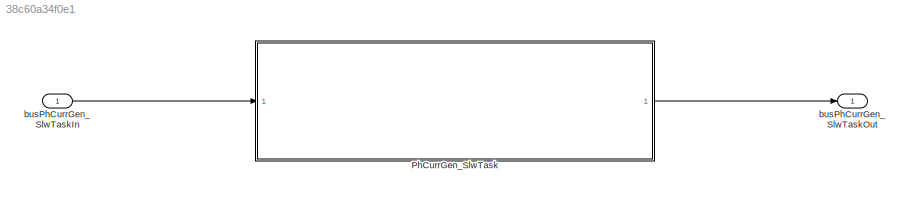
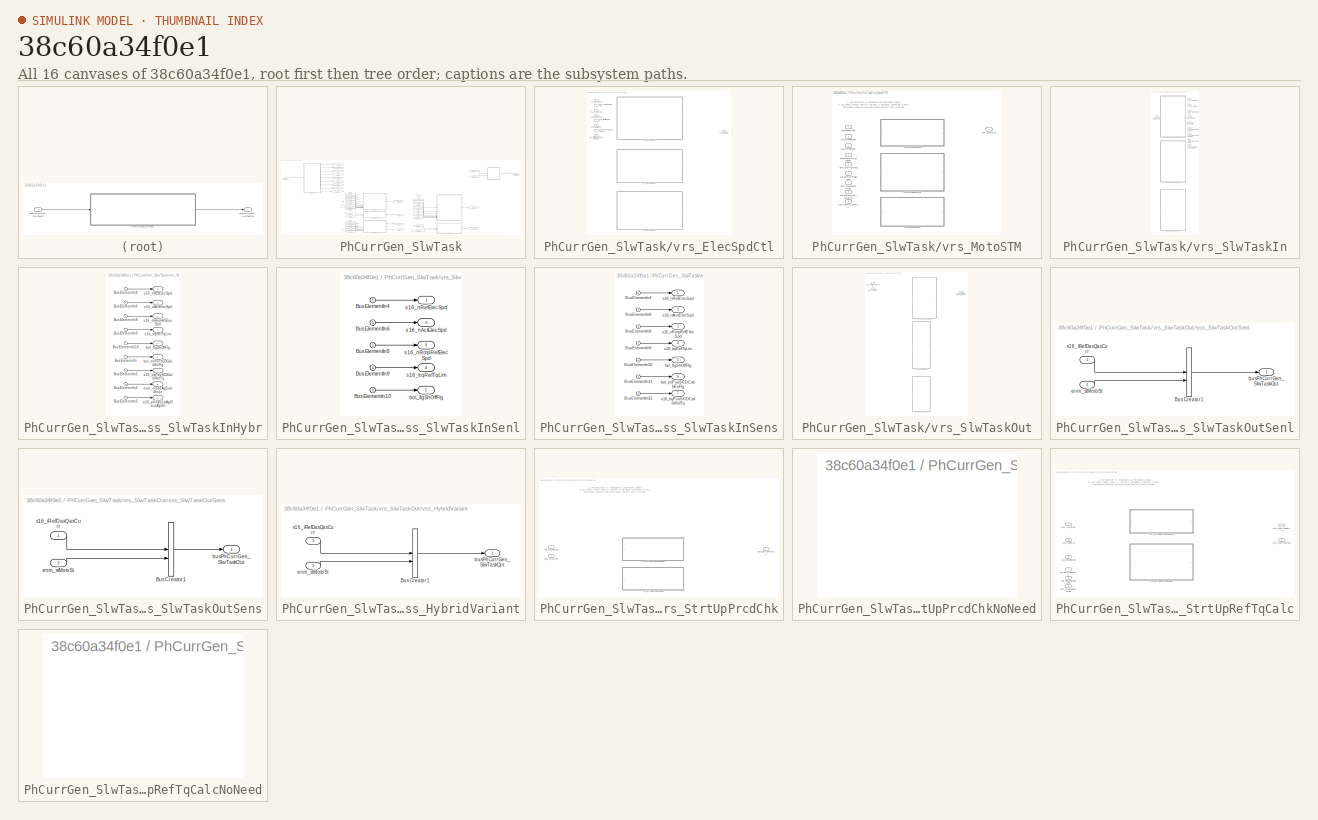
[diagram: thumbnail index - all 16 canvases of the model, root first then tree order]
MODEL slx_38c60a34f0e1
KIND model
CONFIG AbsTol = auto
CONFIG EnableMultiTasking = on
CONFIG FixedStep = 0.0005
CONFIG MaxStep = auto
CONFIG MinStep = auto
CONFIG RelTol = 1e-3
CONFIG SampleTimeConstraint = Unconstrained
CONFIG SolverName = FixedStepAuto
CONFIG StartTime = 0.0
CONFIG StopTime = 5
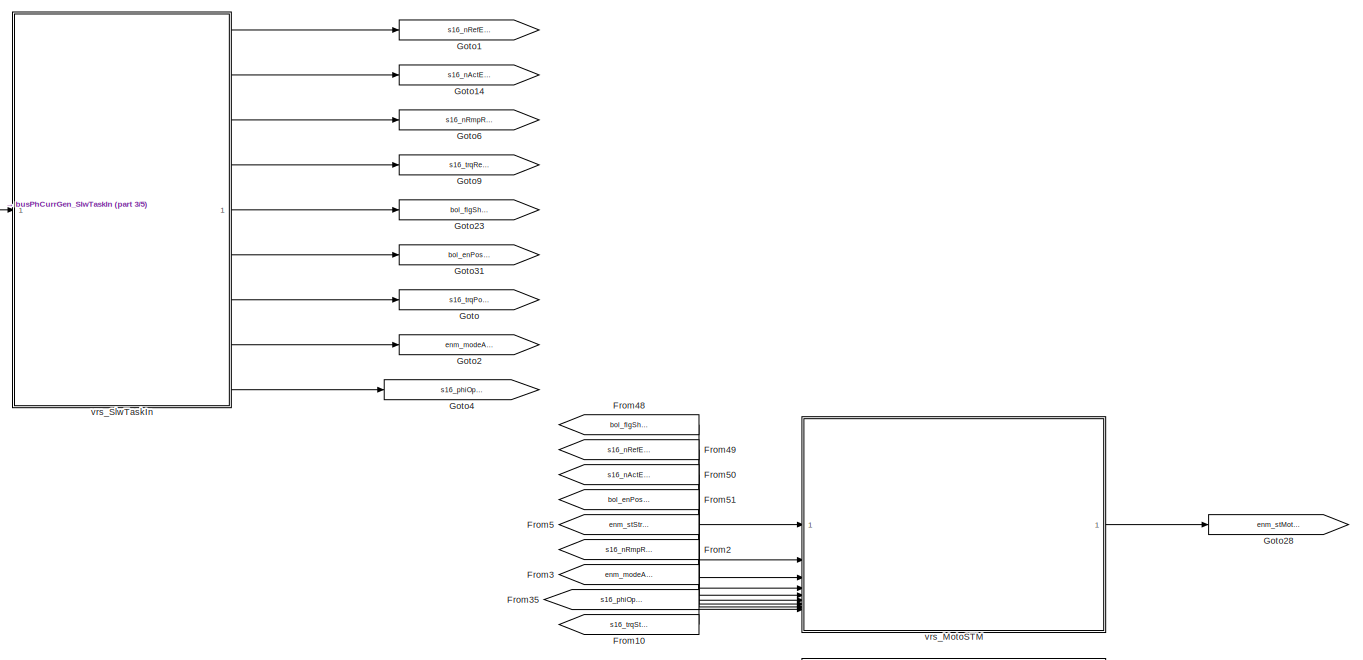
[diagram: PhCurrGen_SlwTask - part 1/5, middle left region]
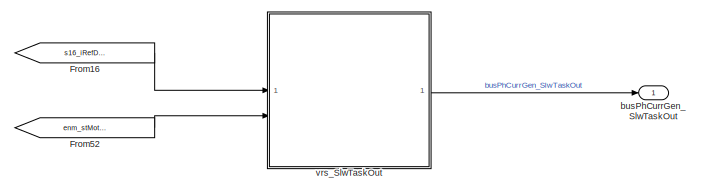
[diagram: PhCurrGen_SlwTask - part 2/5, top right region]
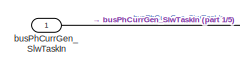
[diagram: PhCurrGen_SlwTask - part 3/5, top left region]
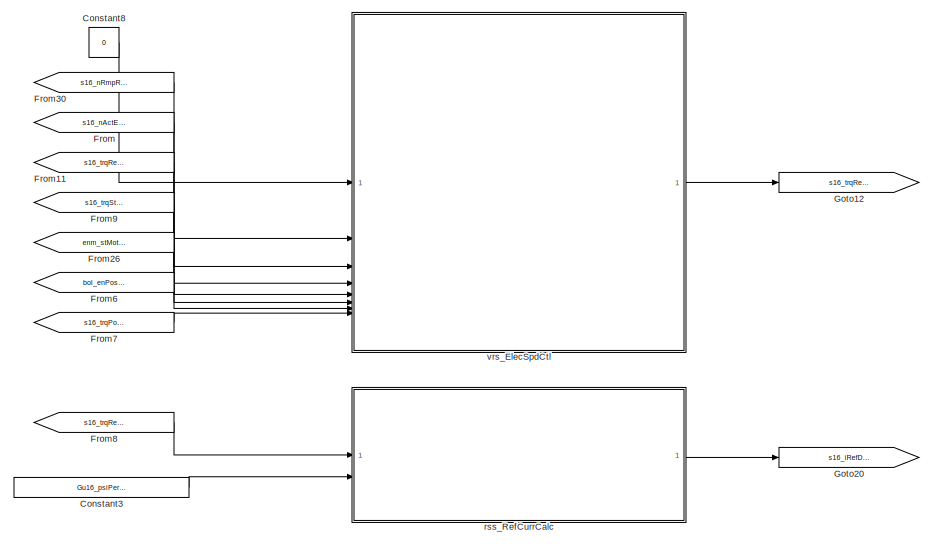
[diagram: PhCurrGen_SlwTask - part 4/5, bottom right region]
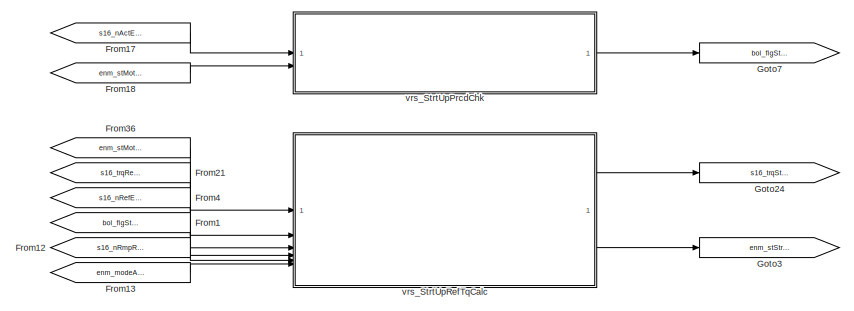
[diagram: PhCurrGen_SlwTask - part 5/5, bottom center region]
BLOCK [SubSystem] PhCurrGen_SlwTask
  RTWFcnName = PhCurrGen_SlwTask
  RTWFcnNameOpts = User specified
  RTWSystemCode = Nonreusable function
  TreatAsAtomicUnit = on
BLOCK [Constant] PhCurrGen_SlwTask/Constant3
  Value = Gu16_psiPermMagFlx_C
BLOCK [Constant] PhCurrGen_SlwTask/Constant8
  OutDataTypeStr = dt_Standardize_s16p15b0
  Value = 0
BLOCK [From] PhCurrGen_SlwTask/From
  GotoTag = s16_nActElecSpd
BLOCK [From] PhCurrGen_SlwTask/From1
  GotoTag = bol_flgStrtUpProcOk
BLOCK [From] PhCurrGen_SlwTask/From10
  GotoTag = s16_trqStrtUpRefTq
BLOCK [From] PhCurrGen_SlwTask/From11
  GotoTag = s16_trqRefTqLim
BLOCK [From] PhCurrGen_SlwTask/From12
  GotoTag = s16_nRmpRefElecSpd
BLOCK [From] PhCurrGen_SlwTask/From13
  GotoTag = enm_modeAgEvalMode
BLOCK [From] PhCurrGen_SlwTask/From16
  GotoTag = s16_iRefDaxQaxCurr
BLOCK [From] PhCurrGen_SlwTask/From17
  GotoTag = s16_nActElecSpd
BLOCK [From] PhCurrGen_SlwTask/From18
  GotoTag = enm_stMotoSt
BLOCK [From] PhCurrGen_SlwTask/From2
  GotoTag = s16_nRmpRefElecSpd
BLOCK [From] PhCurrGen_SlwTask/From21
  GotoTag = s16_trqRefTq
BLOCK [From] PhCurrGen_SlwTask/From26
  GotoTag = enm_stMotoSt
BLOCK [From] PhCurrGen_SlwTask/From3
  GotoTag = enm_modeAgEvalMode
BLOCK [From] PhCurrGen_SlwTask/From30
  GotoTag = s16_nRmpRefElecSpd
BLOCK [From] PhCurrGen_SlwTask/From35
  GotoTag = s16_phiOpnLpAgClsLpAgDvt
BLOCK [From] PhCurrGen_SlwTask/From36
  GotoTag = enm_stMotoSt
BLOCK [From] PhCurrGen_SlwTask/From4
  GotoTag = s16_nRefElecSpd
BLOCK [From] PhCurrGen_SlwTask/From48
  GotoTag = bol_flgShOffFlg
BLOCK [From] PhCurrGen_SlwTask/From49
  GotoTag = s16_nRefElecSpd
BLOCK [From] PhCurrGen_SlwTask/From5
  GotoTag = enm_stStrtupTrqSt
BLOCK [From] PhCurrGen_SlwTask/From50
  GotoTag = s16_nActElecSpd
BLOCK [From] PhCurrGen_SlwTask/From51
  GotoTag = bol_enPosSCDCalibEnFlg
BLOCK [From] PhCurrGen_SlwTask/From52
  GotoTag = enm_stMotoSt
BLOCK [From] PhCurrGen_SlwTask/From6
  GotoTag = bol_enPosSCDCalibEnFlg
BLOCK [From] PhCurrGen_SlwTask/From7
  GotoTag = s16_trqPosSCDCalibRefTq
BLOCK [From] PhCurrGen_SlwTask/From8
  GotoTag = s16_trqRefTq
BLOCK [From] PhCurrGen_SlwTask/From9
  GotoTag = s16_trqStrtUpRefTq
BLOCK [Goto] PhCurrGen_SlwTask/Goto
  GotoTag = s16_trqPosSCDCalibRefTq
BLOCK [Goto] PhCurrGen_SlwTask/Goto1
  GotoTag = s16_nRefElecSpd
BLOCK [Goto] PhCurrGen_SlwTask/Goto12
  GotoTag = s16_trqRefTq
BLOCK [Goto] PhCurrGen_SlwTask/Goto14
  GotoTag = s16_nActElecSpd
BLOCK [Goto] PhCurrGen_SlwTask/Goto2
  GotoTag = enm_modeAgEvalMode
BLOCK [Goto] PhCurrGen_SlwTask/Goto20
  GotoTag = s16_iRefDaxQaxCurr
BLOCK [Goto] PhCurrGen_SlwTask/Goto23
  GotoTag = bol_flgShOffFlg
BLOCK [Goto] PhCurrGen_SlwTask/Goto24
  GotoTag = s16_trqStrtUpRefTq
BLOCK [Goto] PhCurrGen_SlwTask/Goto28
  GotoTag = enm_stMotoSt
BLOCK [Goto] PhCurrGen_SlwTask/Goto3
  GotoTag = enm_stStrtupTrqSt
BLOCK [Goto] PhCurrGen_SlwTask/Goto31
  GotoTag = bol_enPosSCDCalibEnFlg
BLOCK [Goto] PhCurrGen_SlwTask/Goto4
  GotoTag = s16_phiOpnLpAgClsLpAgDvt
BLOCK [Goto] PhCurrGen_SlwTask/Goto6
  GotoTag = s16_nRmpRefElecSpd
BLOCK [Goto] PhCurrGen_SlwTask/Goto7
  GotoTag = bol_flgStrtUpProcOk
BLOCK [Goto] PhCurrGen_SlwTask/Goto9
  GotoTag = s16_trqRefTqLim
BLOCK [Inport] PhCurrGen_SlwTask/busPhCurrGen_SlwTaskIn
  SamplingMode = Sample based
  SignalType = real
BLOCK [Outport] PhCurrGen_SlwTask/busPhCurrGen_SlwTaskOut
  SamplingMode = Sample based
  SignalType = real
BLOCK [SubSystem] PhCurrGen_SlwTask/rss_RefCurrCalc
  ReferencedSubsystem = rss_RefCurrCalc
BLOCK [SubSystem] PhCurrGen_SlwTask/vrs_ElecSpdCtl
  LabelModeActiveChoice = cstHybrCtrlLbl
  Variant = on
  VariantControl = Choice
  VariantControlMode = label
BLOCK [Inport] PhCurrGen_SlwTask/vrs_ElecSpdCtl/bol_enPosSCDCalibEnFlg
  Port = 7
BLOCK [Inport] PhCurrGen_SlwTask/vrs_ElecSpdCtl/enm_stMotoSt
  Port = 6
BLOCK [SubSystem] PhCurrGen_SlwTask/vrs_ElecSpdCtl/rss_ElecSpdCtlHybr
  ReferencedSubsystem = rss_ElecSpdCtlHybr
  VariantControl = cstHybrCtrlLbl
BLOCK [SubSystem] PhCurrGen_SlwTask/vrs_ElecSpdCtl/rss_ElecSpdCtlSenl
  ReferencedSubsystem = rss_ElecSpdCtlSenl
  VariantControl = cstSenlCtrlLbl
BLOCK [SubSystem] PhCurrGen_SlwTask/vrs_ElecSpdCtl/rss_ElecSpdCtlSens
  ReferencedSubsystem = rss_ElecSpdCtlSens
  VariantControl = cstSensCtrlLbl
BLOCK [Inport] PhCurrGen_SlwTask/vrs_ElecSpdCtl/s16_nActElecSpd
  Port = 3
BLOCK [Inport] PhCurrGen_SlwTask/vrs_ElecSpdCtl/s16_nRmpRefElecSpd
  Port = 2
BLOCK [Inport] PhCurrGen_SlwTask/vrs_ElecSpdCtl/s16_trqFdwdTq
BLOCK [Inport] PhCurrGen_SlwTask/vrs_ElecSpdCtl/s16_trqPosSCDCalibRefTq
  Port = 8
BLOCK [Outport] PhCurrGen_SlwTask/vrs_ElecSpdCtl/s16_trqRefTq
BLOCK [Inport] PhCurrGen_SlwTask/vrs_ElecSpdCtl/s16_trqRefTqLim
  Port = 4
BLOCK [Inport] PhCurrGen_SlwTask/vrs_ElecSpdCtl/s16_trqStrtUpRefTq
  Port = 5
BLOCK [SubSystem] PhCurrGen_SlwTask/vrs_MotoSTM
  LabelModeActiveChoice = cstHybrCtrlLbl
  Variant = on
  VariantControlMode = label
BLOCK [Inport] PhCurrGen_SlwTask/vrs_MotoSTM/bol_enPosSCDCalibEnFlg
  Port = 4
BLOCK [Inport] PhCurrGen_SlwTask/vrs_MotoSTM/bol_flgShOffFlg
BLOCK [Inport] PhCurrGen_SlwTask/vrs_MotoSTM/enm_modeAgEvalMode
  Port = 7
BLOCK [Outport] PhCurrGen_SlwTask/vrs_MotoSTM/enm_stMotoSt
BLOCK [Inport] PhCurrGen_SlwTask/vrs_MotoSTM/enm_stStrtupTrqSt
  Port = 5
BLOCK [SubSystem] PhCurrGen_SlwTask/vrs_MotoSTM/rss_MotoSTMHybr
  ReferencedSubsystem = rss_MotoSTMHybr
  VariantControl = cstHybrCtrlLbl
BLOCK [SubSystem] PhCurrGen_SlwTask/vrs_MotoSTM/rss_MotoSTMSenl
  ReferencedSubsystem = rss_MotoSTMSenl
  VariantControl = cstSenlCtrlLbl
BLOCK [SubSystem] PhCurrGen_SlwTask/vrs_MotoSTM/rss_MotoSTMSens
  ReferencedSubsystem = rss_MotoSTMSens
  VariantControl = cstSensCtrlLbl
BLOCK [Inport] PhCurrGen_SlwTask/vrs_MotoSTM/s16_nActElecSpd
  Port = 3
BLOCK [Inport] PhCurrGen_SlwTask/vrs_MotoSTM/s16_nRefElecSpd
  Port = 2
BLOCK [Inport] PhCurrGen_SlwTask/vrs_MotoSTM/s16_nRmpRefElecSpd
  Port = 6
BLOCK [Inport] PhCurrGen_SlwTask/vrs_MotoSTM/s16_phiOpnLpAgClsLpAgDvt
  Port = 8
BLOCK [Inport] PhCurrGen_SlwTask/vrs_MotoSTM/s16_trqStrtUpRefTq
  Port = 9
BLOCK [SubSystem] PhCurrGen_SlwTask/vrs_SlwTaskIn
  LabelModeActiveChoice = cstHybrCtrlLbl
  Variant = on
  VariantControl = cstSenlCtrlLbl
  VariantControlMode = label
BLOCK [Outport] PhCurrGen_SlwTask/vrs_SlwTaskIn/bol_enPosSCDCalibEnFlg
  Port = 6
BLOCK [Outport] PhCurrGen_SlwTask/vrs_SlwTaskIn/bol_flgShOffFlg
  Port = 5
BLOCK [Inport] PhCurrGen_SlwTask/vrs_SlwTaskIn/busMotoCtl_SlwTaskIn
BLOCK [Outport] PhCurrGen_SlwTask/vrs_SlwTaskIn/enm_modeAgEvalMode
  Port = 8
BLOCK [Outport] PhCurrGen_SlwTask/vrs_SlwTaskIn/s16_nActElecSpd
  Port = 2
BLOCK [Outport] PhCurrGen_SlwTask/vrs_SlwTaskIn/s16_nRefElecSpd
BLOCK [Outport] PhCurrGen_SlwTask/vrs_SlwTaskIn/s16_nRmpRefElecSpd
  Port = 3
BLOCK [Outport] PhCurrGen_SlwTask/vrs_SlwTaskIn/s16_phiOpnLpAgClsLpAgDvt
  Port = 9
BLOCK [Outport] PhCurrGen_SlwTask/vrs_SlwTaskIn/s16_trqPosSCDCalibRefTq
  Port = 7
BLOCK [Outport] PhCurrGen_SlwTask/vrs_SlwTaskIn/s16_trqRefTqLim
  Port = 4
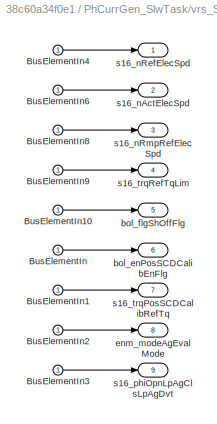
BLOCK [SubSystem] PhCurrGen_SlwTask/vrs_SlwTaskIn/sss_SlwTaskInHybr
  VariantControl = cstHybrCtrlLbl
BLOCK [Inport] PhCurrGen_SlwTask/vrs_SlwTaskIn/sss_SlwTaskInHybr/BusElementIn
BLOCK [Inport] PhCurrGen_SlwTask/vrs_SlwTaskIn/sss_SlwTaskInHybr/BusElementIn1
BLOCK [Inport] PhCurrGen_SlwTask/vrs_SlwTaskIn/sss_SlwTaskInHybr/BusElementIn10
BLOCK [Inport] PhCurrGen_SlwTask/vrs_SlwTaskIn/sss_SlwTaskInHybr/BusElementIn2
BLOCK [Inport] PhCurrGen_SlwTask/vrs_SlwTaskIn/sss_SlwTaskInHybr/BusElementIn3
BLOCK [Inport] PhCurrGen_SlwTask/vrs_SlwTaskIn/sss_SlwTaskInHybr/BusElementIn4
BLOCK [Inport] PhCurrGen_SlwTask/vrs_SlwTaskIn/sss_SlwTaskInHybr/BusElementIn6
BLOCK [Inport] PhCurrGen_SlwTask/vrs_SlwTaskIn/sss_SlwTaskInHybr/BusElementIn8
BLOCK [Inport] PhCurrGen_SlwTask/vrs_SlwTaskIn/sss_SlwTaskInHybr/BusElementIn9
BLOCK [Outport] PhCurrGen_SlwTask/vrs_SlwTaskIn/sss_SlwTaskInHybr/bol_enPosSCDCalibEnFlg
  Port = 6
BLOCK [Outport] PhCurrGen_SlwTask/vrs_SlwTaskIn/sss_SlwTaskInHybr/bol_flgShOffFlg
  Port = 5
BLOCK [Outport] PhCurrGen_SlwTask/vrs_SlwTaskIn/sss_SlwTaskInHybr/enm_modeAgEvalMode
  Port = 8
BLOCK [Outport] PhCurrGen_SlwTask/vrs_SlwTaskIn/sss_SlwTaskInHybr/s16_nActElecSpd
  Port = 2
BLOCK [Outport] PhCurrGen_SlwTask/vrs_SlwTaskIn/sss_SlwTaskInHybr/s16_nRefElecSpd
BLOCK [Outport] PhCurrGen_SlwTask/vrs_SlwTaskIn/sss_SlwTaskInHybr/s16_nRmpRefElecSpd
  Port = 3
BLOCK [Outport] PhCurrGen_SlwTask/vrs_SlwTaskIn/sss_SlwTaskInHybr/s16_phiOpnLpAgClsLpAgDvt
  Port = 9
BLOCK [Outport] PhCurrGen_SlwTask/vrs_SlwTaskIn/sss_SlwTaskInHybr/s16_trqPosSCDCalibRefTq
  Port = 7
BLOCK [Outport] PhCurrGen_SlwTask/vrs_SlwTaskIn/sss_SlwTaskInHybr/s16_trqRefTqLim
  Port = 4
BLOCK [SubSystem] PhCurrGen_SlwTask/vrs_SlwTaskIn/sss_SlwTaskInSenl
  VariantControl = cstSenlCtrlLbl
BLOCK [Inport] PhCurrGen_SlwTask/vrs_SlwTaskIn/sss_SlwTaskInSenl/BusElementIn10
BLOCK [Inport] PhCurrGen_SlwTask/vrs_SlwTaskIn/sss_SlwTaskInSenl/BusElementIn4
BLOCK [Inport] PhCurrGen_SlwTask/vrs_SlwTaskIn/sss_SlwTaskInSenl/BusElementIn6
BLOCK [Inport] PhCurrGen_SlwTask/vrs_SlwTaskIn/sss_SlwTaskInSenl/BusElementIn8
BLOCK [Inport] PhCurrGen_SlwTask/vrs_SlwTaskIn/sss_SlwTaskInSenl/BusElementIn9
BLOCK [Outport] PhCurrGen_SlwTask/vrs_SlwTaskIn/sss_SlwTaskInSenl/bol_flgShOffFlg
  Port = 5
BLOCK [Outport] PhCurrGen_SlwTask/vrs_SlwTaskIn/sss_SlwTaskInSenl/s16_nActElecSpd
  Port = 2
BLOCK [Outport] PhCurrGen_SlwTask/vrs_SlwTaskIn/sss_SlwTaskInSenl/s16_nRefElecSpd
BLOCK [Outport] PhCurrGen_SlwTask/vrs_SlwTaskIn/sss_SlwTaskInSenl/s16_nRmpRefElecSpd
  Port = 3
BLOCK [Outport] PhCurrGen_SlwTask/vrs_SlwTaskIn/sss_SlwTaskInSenl/s16_trqRefTqLim
  Port = 4
BLOCK [SubSystem] PhCurrGen_SlwTask/vrs_SlwTaskIn/sss_SlwTaskInSens
  VariantControl = cstSensCtrlLbl
BLOCK [Inport] PhCurrGen_SlwTask/vrs_SlwTaskIn/sss_SlwTaskInSens/BusElementIn10
BLOCK [Inport] PhCurrGen_SlwTask/vrs_SlwTaskIn/sss_SlwTaskInSens/BusElementIn11
BLOCK [Inport] PhCurrGen_SlwTask/vrs_SlwTaskIn/sss_SlwTaskInSens/BusElementIn12
BLOCK [Inport] PhCurrGen_SlwTask/vrs_SlwTaskIn/sss_SlwTaskInSens/BusElementIn4
BLOCK [Inport] PhCurrGen_SlwTask/vrs_SlwTaskIn/sss_SlwTaskInSens/BusElementIn6
BLOCK [Inport] PhCurrGen_SlwTask/vrs_SlwTaskIn/sss_SlwTaskInSens/BusElementIn8
BLOCK [Inport] PhCurrGen_SlwTask/vrs_SlwTaskIn/sss_SlwTaskInSens/BusElementIn9
BLOCK [Outport] PhCurrGen_SlwTask/vrs_SlwTaskIn/sss_SlwTaskInSens/bol_enPosSCDCalibEnFlg
  Port = 6
BLOCK [Outport] PhCurrGen_SlwTask/vrs_SlwTaskIn/sss_SlwTaskInSens/bol_flgShOffFlg
  Port = 5
BLOCK [Outport] PhCurrGen_SlwTask/vrs_SlwTaskIn/sss_SlwTaskInSens/s16_nActElecSpd
  Port = 2
BLOCK [Outport] PhCurrGen_SlwTask/vrs_SlwTaskIn/sss_SlwTaskInSens/s16_nRefElecSpd
BLOCK [Outport] PhCurrGen_SlwTask/vrs_SlwTaskIn/sss_SlwTaskInSens/s16_nRmpRefElecSpd
  Port = 3
BLOCK [Outport] PhCurrGen_SlwTask/vrs_SlwTaskIn/sss_SlwTaskInSens/s16_trqPosSCDCalibRefTq
  Port = 7
BLOCK [Outport] PhCurrGen_SlwTask/vrs_SlwTaskIn/sss_SlwTaskInSens/s16_trqRefTqLim
  Port = 4
BLOCK [SubSystem] PhCurrGen_SlwTask/vrs_SlwTaskOut
  LabelModeActiveChoice = cstSenlCtrlLbl
  Variant = on
  VariantControl = Choice
  VariantControlMode = label
BLOCK [Outport] PhCurrGen_SlwTask/vrs_SlwTaskOut/busPhCurrGen_SlwTaskOut
BLOCK [Inport] PhCurrGen_SlwTask/vrs_SlwTaskOut/enm_stMotoSt
  Port = 2
BLOCK [Inport] PhCurrGen_SlwTask/vrs_SlwTaskOut/s16_iRefDaxQaxCurr
BLOCK [SubSystem] PhCurrGen_SlwTask/vrs_SlwTaskOut/sss_SlwTaskOutSenl
  VariantControl = cstSenlCtrlLbl
BLOCK [BusCreator] PhCurrGen_SlwTask/vrs_SlwTaskOut/sss_SlwTaskOutSenl/Bus Creator1
  DisplayOption = bar
  InheritFromInputs = off
  Inputs = 2
  NonVirtualBus = on
  OutDataTypeStr = Bus: BUS_PHCURRGEN_SLW_TASK_OUT
BLOCK [Outport] PhCurrGen_SlwTask/vrs_SlwTaskOut/sss_SlwTaskOutSenl/busPhCurrGen_SlwTaskOut
BLOCK [Inport] PhCurrGen_SlwTask/vrs_SlwTaskOut/sss_SlwTaskOutSenl/enm_stMotoSt
  Port = 2
BLOCK [Inport] PhCurrGen_SlwTask/vrs_SlwTaskOut/sss_SlwTaskOutSenl/s16_iRefDaxQaxCurr
BLOCK [SubSystem] PhCurrGen_SlwTask/vrs_SlwTaskOut/sss_SlwTaskOutSens
  VariantControl = cstSensCtrlLbl
BLOCK [BusCreator] PhCurrGen_SlwTask/vrs_SlwTaskOut/sss_SlwTaskOutSens/Bus Creator1
  DisplayOption = bar
  InheritFromInputs = off
  Inputs = 2
  NonVirtualBus = on
  OutDataTypeStr = Bus: BUS_PHCURRGEN_SLW_TASK_OUT
BLOCK [Outport] PhCurrGen_SlwTask/vrs_SlwTaskOut/sss_SlwTaskOutSens/busPhCurrGen_SlwTaskOut
BLOCK [Inport] PhCurrGen_SlwTask/vrs_SlwTaskOut/sss_SlwTaskOutSens/enm_stMotoSt
  Port = 2
BLOCK [Inport] PhCurrGen_SlwTask/vrs_SlwTaskOut/sss_SlwTaskOutSens/s16_iRefDaxQaxCurr
BLOCK [SubSystem] PhCurrGen_SlwTask/vrs_SlwTaskOut/vss_HybridVariant
  VariantControl = cstHybrCtrlLbl
BLOCK [BusCreator] PhCurrGen_SlwTask/vrs_SlwTaskOut/vss_HybridVariant/Bus Creator1
  DisplayOption = bar
  InheritFromInputs = off
  Inputs = 2
  NonVirtualBus = on
  OutDataTypeStr = Bus: BUS_PHCURRGEN_SLW_TASK_OUT
BLOCK [Outport] PhCurrGen_SlwTask/vrs_SlwTaskOut/vss_HybridVariant/busPhCurrGen_SlwTaskOut
BLOCK [Inport] PhCurrGen_SlwTask/vrs_SlwTaskOut/vss_HybridVariant/enm_stMotoSt
  Port = 2
BLOCK [Inport] PhCurrGen_SlwTask/vrs_SlwTaskOut/vss_HybridVariant/s16_iRefDaxQaxCurr
BLOCK [SubSystem] PhCurrGen_SlwTask/vrs_StrtUpPrcdChk
  LabelModeActiveChoice = cstSenlCtrlLbl
  Variant = on
  VariantControlMode = label
BLOCK [Outport] PhCurrGen_SlwTask/vrs_StrtUpPrcdChk/bol_flgStrtUpProcOk
BLOCK [Inport] PhCurrGen_SlwTask/vrs_StrtUpPrcdChk/enm_stMotoSt
  Port = 2
BLOCK [SubSystem] PhCurrGen_SlwTask/vrs_StrtUpPrcdChk/rss_StrtUpPrcdChkNeed
  ReferencedSubsystem = rss_StrtUpPrcdChkNeed
  VariantControl = cstSenlCtrlLbl
BLOCK [Inport] PhCurrGen_SlwTask/vrs_StrtUpPrcdChk/s16_nActElecSpd
  PortDimensions = 1
  SignalType = real
  VarSizeSig = No
BLOCK [SubSystem] PhCurrGen_SlwTask/vrs_StrtUpPrcdChk/sss_StrtUpPrcdChkNoNeed
  VariantControl = cstSensCtrlLbl
BLOCK [SubSystem] PhCurrGen_SlwTask/vrs_StrtUpRefTqCalc
  LabelModeActiveChoice = cstSenlCtrlLbl
  Variant = on
  VariantControlMode = label
BLOCK [Inport] PhCurrGen_SlwTask/vrs_StrtUpRefTqCalc/bol_flgStrtUpProcOk
  Port = 4
BLOCK [Inport] PhCurrGen_SlwTask/vrs_StrtUpRefTqCalc/enm_modeAgEvalMode
  Port = 6
BLOCK [Inport] PhCurrGen_SlwTask/vrs_StrtUpRefTqCalc/enm_stMotoSt
BLOCK [Outport] PhCurrGen_SlwTask/vrs_StrtUpRefTqCalc/enm_stStrtupTrqSt
  Port = 2
BLOCK [SubSystem] PhCurrGen_SlwTask/vrs_StrtUpRefTqCalc/rss_StrtUpRefTqCalcNeed
  ReferencedSubsystem = rss_StrtUpRefTqCalcNeed
  VariantControl = cstSenlCtrlLbl
BLOCK [Inport] PhCurrGen_SlwTask/vrs_StrtUpRefTqCalc/s16_nRefElecSpd
  Port = 3
BLOCK [Inport] PhCurrGen_SlwTask/vrs_StrtUpRefTqCalc/s16_nRmpRefElecSpd
  Port = 5
BLOCK [Inport] PhCurrGen_SlwTask/vrs_StrtUpRefTqCalc/s16_trqRefTq
  Port = 2
BLOCK [Outport] PhCurrGen_SlwTask/vrs_StrtUpRefTqCalc/s16_trqStrtUpRefTq
BLOCK [SubSystem] PhCurrGen_SlwTask/vrs_StrtUpRefTqCalc/sss_StrtUpRefTqCalcNoNeed
  VariantControl = cstSensCtrlLbl
BLOCK [Inport] busPhCurrGen_SlwTaskIn
  BusOutputAsStruct = on
  OutDataTypeStr = Bus: BUS_PHCURRGEN_SLW_TASK_IN
  SampleTime = round(double(Cdbl_tiSlwTaskSmpTi),4)
  SamplingMode = Sample based
  SignalType = real
BLOCK [Outport] busPhCurrGen_SlwTaskOut
  OutDataTypeStr = Bus: BUS_PHCURRGEN_SLW_TASK_OUT
  SampleTime = round(double(Cdbl_tiSlwTaskSmpTi),4)
  SamplingMode = Sample based
  SignalType = real
ANNOTATION PhCurrGen_SlwTask/vrs_MotoSTM: 1) Add Subsystem or Model blocks as valid variant choices. 2) You cannot connect blocks at this level. At simulation, connectivity is automatically determined, based on the active variant and port name matching.
ANNOTATION PhCurrGen_SlwTask/vrs_StrtUpPrcdChk: 1) Add Subsystem or Model blocks as valid variant choices. 2) You cannot connect blocks at this level. At simulation, connectivity is automatically determined, based on the active variant and port name matching.
ANNOTATION PhCurrGen_SlwTask/vrs_StrtUpRefTqCalc: 1) Add Subsystem or Model blocks as valid variant choices. 2) You cannot connect blocks at this level. At simulation, connectivity is automatically determined, based on the active variant and port name matching.
LINE PhCurrGen_SlwTask/Constant3:1 -> PhCurrGen_SlwTask/rss_RefCurrCalc:2
LINE PhCurrGen_SlwTask/Constant8:1 -> PhCurrGen_SlwTask/vrs_ElecSpdCtl:1
LINE PhCurrGen_SlwTask/From10:1 -> PhCurrGen_SlwTask/vrs_MotoSTM:9
LINE PhCurrGen_SlwTask/From11:1 -> PhCurrGen_SlwTask/vrs_ElecSpdCtl:4
LINE PhCurrGen_SlwTask/From12:1 -> PhCurrGen_SlwTask/vrs_StrtUpRefTqCalc:5
LINE PhCurrGen_SlwTask/From13:1 -> PhCurrGen_SlwTask/vrs_StrtUpRefTqCalc:6
LINE PhCurrGen_SlwTask/From16:1 -> PhCurrGen_SlwTask/vrs_SlwTaskOut:1
LINE PhCurrGen_SlwTask/From17:1 -> PhCurrGen_SlwTask/vrs_StrtUpPrcdChk:1
LINE PhCurrGen_SlwTask/From18:1 -> PhCurrGen_SlwTask/vrs_StrtUpPrcdChk:2
LINE PhCurrGen_SlwTask/From1:1 -> PhCurrGen_SlwTask/vrs_StrtUpRefTqCalc:4
LINE PhCurrGen_SlwTask/From21:1 -> PhCurrGen_SlwTask/vrs_StrtUpRefTqCalc:2
LINE PhCurrGen_SlwTask/From26:1 -> PhCurrGen_SlwTask/vrs_ElecSpdCtl:6
LINE PhCurrGen_SlwTask/From2:1 -> PhCurrGen_SlwTask/vrs_MotoSTM:6
LINE PhCurrGen_SlwTask/From30:1 -> PhCurrGen_SlwTask/vrs_ElecSpdCtl:2
LINE PhCurrGen_SlwTask/From35:1 -> PhCurrGen_SlwTask/vrs_MotoSTM:8
LINE PhCurrGen_SlwTask/From36:1 -> PhCurrGen_SlwTask/vrs_StrtUpRefTqCalc:1
LINE PhCurrGen_SlwTask/From3:1 -> PhCurrGen_SlwTask/vrs_MotoSTM:7
LINE PhCurrGen_SlwTask/From48:1 -> PhCurrGen_SlwTask/vrs_MotoSTM:1
LINE PhCurrGen_SlwTask/From49:1 -> PhCurrGen_SlwTask/vrs_MotoSTM:2
LINE PhCurrGen_SlwTask/From4:1 -> PhCurrGen_SlwTask/vrs_StrtUpRefTqCalc:3
LINE PhCurrGen_SlwTask/From50:1 -> PhCurrGen_SlwTask/vrs_MotoSTM:3
LINE PhCurrGen_SlwTask/From51:1 -> PhCurrGen_SlwTask/vrs_MotoSTM:4
LINE PhCurrGen_SlwTask/From52:1 -> PhCurrGen_SlwTask/vrs_SlwTaskOut:2
LINE PhCurrGen_SlwTask/From5:1 -> PhCurrGen_SlwTask/vrs_MotoSTM:5
LINE PhCurrGen_SlwTask/From6:1 -> PhCurrGen_SlwTask/vrs_ElecSpdCtl:7
LINE PhCurrGen_SlwTask/From7:1 -> PhCurrGen_SlwTask/vrs_ElecSpdCtl:8
LINE PhCurrGen_SlwTask/From8:1 -> PhCurrGen_SlwTask/rss_RefCurrCalc:1
LINE PhCurrGen_SlwTask/From9:1 -> PhCurrGen_SlwTask/vrs_ElecSpdCtl:5
LINE PhCurrGen_SlwTask/From:1 -> PhCurrGen_SlwTask/vrs_ElecSpdCtl:3
LINE PhCurrGen_SlwTask/busPhCurrGen_SlwTaskIn:1 -> PhCurrGen_SlwTask/vrs_SlwTaskIn:1
LINE PhCurrGen_SlwTask/rss_RefCurrCalc:1 -> PhCurrGen_SlwTask/Goto20:1
LINE PhCurrGen_SlwTask/vrs_ElecSpdCtl:1 -> PhCurrGen_SlwTask/Goto12:1
LINE PhCurrGen_SlwTask/vrs_MotoSTM:1 -> PhCurrGen_SlwTask/Goto28:1
LINE PhCurrGen_SlwTask/vrs_SlwTaskIn/sss_SlwTaskInHybr/BusElementIn10:1 -> PhCurrGen_SlwTask/vrs_SlwTaskIn/sss_SlwTaskInHybr/bol_flgShOffFlg:1
LINE PhCurrGen_SlwTask/vrs_SlwTaskIn/sss_SlwTaskInHybr/BusElementIn1:1 -> PhCurrGen_SlwTask/vrs_SlwTaskIn/sss_SlwTaskInHybr/s16_trqPosSCDCalibRefTq:1
LINE PhCurrGen_SlwTask/vrs_SlwTaskIn/sss_SlwTaskInHybr/BusElementIn2:1 -> PhCurrGen_SlwTask/vrs_SlwTaskIn/sss_SlwTaskInHybr/enm_modeAgEvalMode:1
LINE PhCurrGen_SlwTask/vrs_SlwTaskIn/sss_SlwTaskInHybr/BusElementIn3:1 -> PhCurrGen_SlwTask/vrs_SlwTaskIn/sss_SlwTaskInHybr/s16_phiOpnLpAgClsLpAgDvt:1
LINE PhCurrGen_SlwTask/vrs_SlwTaskIn/sss_SlwTaskInHybr/BusElementIn4:1 -> PhCurrGen_SlwTask/vrs_SlwTaskIn/sss_SlwTaskInHybr/s16_nRefElecSpd:1
LINE PhCurrGen_SlwTask/vrs_SlwTaskIn/sss_SlwTaskInHybr/BusElementIn6:1 -> PhCurrGen_SlwTask/vrs_SlwTaskIn/sss_SlwTaskInHybr/s16_nActElecSpd:1
LINE PhCurrGen_SlwTask/vrs_SlwTaskIn/sss_SlwTaskInHybr/BusElementIn8:1 -> PhCurrGen_SlwTask/vrs_SlwTaskIn/sss_SlwTaskInHybr/s16_nRmpRefElecSpd:1
LINE PhCurrGen_SlwTask/vrs_SlwTaskIn/sss_SlwTaskInHybr/BusElementIn9:1 -> PhCurrGen_SlwTask/vrs_SlwTaskIn/sss_SlwTaskInHybr/s16_trqRefTqLim:1
LINE PhCurrGen_SlwTask/vrs_SlwTaskIn/sss_SlwTaskInHybr/BusElementIn:1 -> PhCurrGen_SlwTask/vrs_SlwTaskIn/sss_SlwTaskInHybr/bol_enPosSCDCalibEnFlg:1
LINE PhCurrGen_SlwTask/vrs_SlwTaskIn/sss_SlwTaskInSenl/BusElementIn10:1 -> PhCurrGen_SlwTask/vrs_SlwTaskIn/sss_SlwTaskInSenl/bol_flgShOffFlg:1
LINE PhCurrGen_SlwTask/vrs_SlwTaskIn/sss_SlwTaskInSenl/BusElementIn4:1 -> PhCurrGen_SlwTask/vrs_SlwTaskIn/sss_SlwTaskInSenl/s16_nRefElecSpd:1
LINE PhCurrGen_SlwTask/vrs_SlwTaskIn/sss_SlwTaskInSenl/BusElementIn6:1 -> PhCurrGen_SlwTask/vrs_SlwTaskIn/sss_SlwTaskInSenl/s16_nActElecSpd:1
LINE PhCurrGen_SlwTask/vrs_SlwTaskIn/sss_SlwTaskInSenl/BusElementIn8:1 -> PhCurrGen_SlwTask/vrs_SlwTaskIn/sss_SlwTaskInSenl/s16_nRmpRefElecSpd:1
LINE PhCurrGen_SlwTask/vrs_SlwTaskIn/sss_SlwTaskInSenl/BusElementIn9:1 -> PhCurrGen_SlwTask/vrs_SlwTaskIn/sss_SlwTaskInSenl/s16_trqRefTqLim:1
LINE PhCurrGen_SlwTask/vrs_SlwTaskIn/sss_SlwTaskInSens/BusElementIn10:1 -> PhCurrGen_SlwTask/vrs_SlwTaskIn/sss_SlwTaskInSens/bol_flgShOffFlg:1
LINE PhCurrGen_SlwTask/vrs_SlwTaskIn/sss_SlwTaskInSens/BusElementIn11:1 -> PhCurrGen_SlwTask/vrs_SlwTaskIn/sss_SlwTaskInSens/bol_enPosSCDCalibEnFlg:1
LINE PhCurrGen_SlwTask/vrs_SlwTaskIn/sss_SlwTaskInSens/BusElementIn12:1 -> PhCurrGen_SlwTask/vrs_SlwTaskIn/sss_SlwTaskInSens/s16_trqPosSCDCalibRefTq:1
LINE PhCurrGen_SlwTask/vrs_SlwTaskIn/sss_SlwTaskInSens/BusElementIn4:1 -> PhCurrGen_SlwTask/vrs_SlwTaskIn/sss_SlwTaskInSens/s16_nRefElecSpd:1
LINE PhCurrGen_SlwTask/vrs_SlwTaskIn/sss_SlwTaskInSens/BusElementIn6:1 -> PhCurrGen_SlwTask/vrs_SlwTaskIn/sss_SlwTaskInSens/s16_nActElecSpd:1
LINE PhCurrGen_SlwTask/vrs_SlwTaskIn/sss_SlwTaskInSens/BusElementIn8:1 -> PhCurrGen_SlwTask/vrs_SlwTaskIn/sss_SlwTaskInSens/s16_nRmpRefElecSpd:1
LINE PhCurrGen_SlwTask/vrs_SlwTaskIn/sss_SlwTaskInSens/BusElementIn9:1 -> PhCurrGen_SlwTask/vrs_SlwTaskIn/sss_SlwTaskInSens/s16_trqRefTqLim:1
LINE PhCurrGen_SlwTask/vrs_SlwTaskIn:1 -> PhCurrGen_SlwTask/Goto1:1
LINE PhCurrGen_SlwTask/vrs_SlwTaskIn:2 -> PhCurrGen_SlwTask/Goto14:1
LINE PhCurrGen_SlwTask/vrs_SlwTaskIn:3 -> PhCurrGen_SlwTask/Goto6:1
LINE PhCurrGen_SlwTask/vrs_SlwTaskIn:4 -> PhCurrGen_SlwTask/Goto9:1
LINE PhCurrGen_SlwTask/vrs_SlwTaskIn:5 -> PhCurrGen_SlwTask/Goto23:1
LINE PhCurrGen_SlwTask/vrs_SlwTaskIn:6 -> PhCurrGen_SlwTask/Goto31:1
LINE PhCurrGen_SlwTask/vrs_SlwTaskIn:7 -> PhCurrGen_SlwTask/Goto:1
LINE PhCurrGen_SlwTask/vrs_SlwTaskIn:8 -> PhCurrGen_SlwTask/Goto2:1
LINE PhCurrGen_SlwTask/vrs_SlwTaskIn:9 -> PhCurrGen_SlwTask/Goto4:1
LINE PhCurrGen_SlwTask/vrs_SlwTaskOut/sss_SlwTaskOutSenl/Bus Creator1:1 -> PhCurrGen_SlwTask/vrs_SlwTaskOut/sss_SlwTaskOutSenl/busPhCurrGen_SlwTaskOut:1
LINE PhCurrGen_SlwTask/vrs_SlwTaskOut/sss_SlwTaskOutSenl/enm_stMotoSt:1 -> PhCurrGen_SlwTask/vrs_SlwTaskOut/sss_SlwTaskOutSenl/Bus Creator1:2
LINE PhCurrGen_SlwTask/vrs_SlwTaskOut/sss_SlwTaskOutSenl/s16_iRefDaxQaxCurr:1 -> PhCurrGen_SlwTask/vrs_SlwTaskOut/sss_SlwTaskOutSenl/Bus Creator1:1
LINE PhCurrGen_SlwTask/vrs_SlwTaskOut/sss_SlwTaskOutSens/Bus Creator1:1 -> PhCurrGen_SlwTask/vrs_SlwTaskOut/sss_SlwTaskOutSens/busPhCurrGen_SlwTaskOut:1
LINE PhCurrGen_SlwTask/vrs_SlwTaskOut/sss_SlwTaskOutSens/enm_stMotoSt:1 -> PhCurrGen_SlwTask/vrs_SlwTaskOut/sss_SlwTaskOutSens/Bus Creator1:2
LINE PhCurrGen_SlwTask/vrs_SlwTaskOut/sss_SlwTaskOutSens/s16_iRefDaxQaxCurr:1 -> PhCurrGen_SlwTask/vrs_SlwTaskOut/sss_SlwTaskOutSens/Bus Creator1:1
LINE PhCurrGen_SlwTask/vrs_SlwTaskOut/vss_HybridVariant/Bus Creator1:1 -> PhCurrGen_SlwTask/vrs_SlwTaskOut/vss_HybridVariant/busPhCurrGen_SlwTaskOut:1
LINE PhCurrGen_SlwTask/vrs_SlwTaskOut/vss_HybridVariant/enm_stMotoSt:1 -> PhCurrGen_SlwTask/vrs_SlwTaskOut/vss_HybridVariant/Bus Creator1:2
LINE PhCurrGen_SlwTask/vrs_SlwTaskOut/vss_HybridVariant/s16_iRefDaxQaxCurr:1 -> PhCurrGen_SlwTask/vrs_SlwTaskOut/vss_HybridVariant/Bus Creator1:1
LINE PhCurrGen_SlwTask/vrs_SlwTaskOut:1 -> PhCurrGen_SlwTask/busPhCurrGen_SlwTaskOut:1
LINE PhCurrGen_SlwTask/vrs_StrtUpPrcdChk:1 -> PhCurrGen_SlwTask/Goto7:1
LINE PhCurrGen_SlwTask/vrs_StrtUpRefTqCalc:1 -> PhCurrGen_SlwTask/Goto24:1
LINE PhCurrGen_SlwTask/vrs_StrtUpRefTqCalc:2 -> PhCurrGen_SlwTask/Goto3:1
LINE PhCurrGen_SlwTask:1 -> busPhCurrGen_SlwTaskOut:1
LINE busPhCurrGen_SlwTaskIn:1 -> PhCurrGen_SlwTask:1
